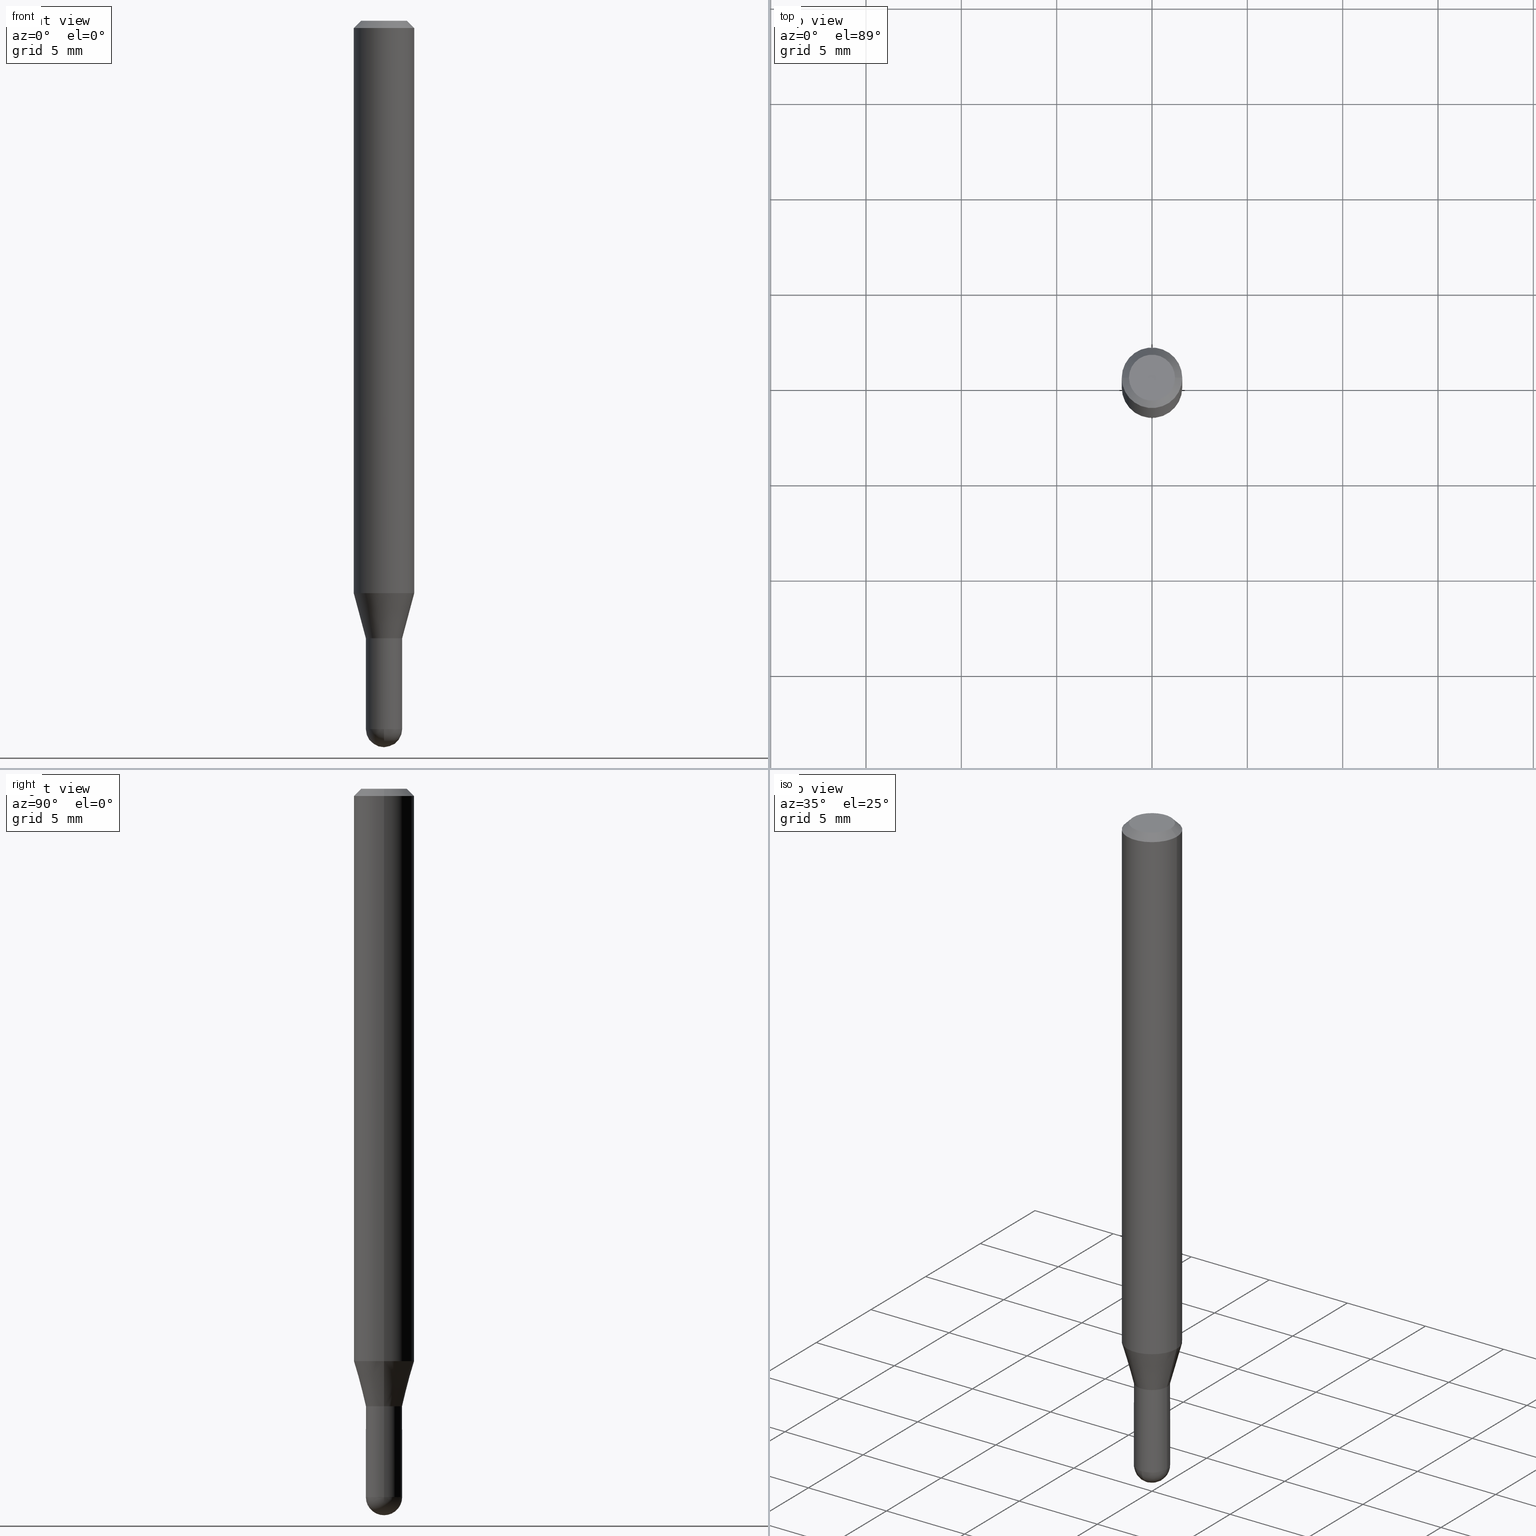
[diagram: canonical four-view strip — front | top / right | iso, engineering-drawing reading convention]
A machine part, canonical four-view strip (front | top / right | iso — engineering-drawing reading convention). The complete STEP part file that produces these views, byte-faithful:
ISO-10303-21;
HEADER;
FILE_DESCRIPTION (( 'STEP AP203' ),
    '1' );
FILE_NAME ('04011.STEP',
    '2024-03-08T18:35:17',
    ( '' ),
    ( '' ),
    'SwSTEP 2.0',
    'SolidWorks 2023',
    '' );
FILE_SCHEMA (( 'CONFIG_CONTROL_DESIGN' ));
ENDSEC;

DATA;
#1 = PLANE ( 'NONE',  #343 ) ;
#2 = DIRECTION ( 'NONE',  ( 1.000000000000000000, -6.982962677686257244E-15, 0.000000000000000000 ) ) ;
#3 = AXIS2_PLACEMENT_3D ( 'NONE', #77, #303, #199 ) ;
#4 = DIRECTION ( 'NONE',  ( 6.982962677686265922E-15, 1.000000000000000000, 0.000000000000000000 ) ) ;
#5 = DIRECTION ( 'NONE',  ( -2.445468806185136597E-29, 3.491481338843145583E-15, 1.000000000000000000 ) ) ;
#6 = MANIFOLD_SOLID_BREP ( 'Body-Move/Copy2[1]', #356 ) ;
#7 = DIRECTION ( 'NONE',  ( 1.000000000000000000, -6.982962677686254089E-15, 0.000000000000000000 ) ) ;
#8 = ADVANCED_FACE ( 'NONE', ( #96 ), #98, .F. ) ;
#9 = LINE ( 'NONE', #508, #94 ) ;
#10 = DIRECTION ( 'NONE',  ( 6.982962677686265922E-15, 1.000000000000000000, 0.000000000000000000 ) ) ;
#11 = DIRECTION ( 'NONE',  ( 1.000000000000000000, -6.982962677686280121E-15, 0.000000000000000000 ) ) ;
#12 = ORIENTED_EDGE ( 'NONE', *, *, #429, .T. ) ;
#13 = DIRECTION ( 'NONE',  ( 6.982962677686265922E-15, 1.000000000000000000, 0.000000000000000000 ) ) ;
#14 = ADVANCED_BREP_SHAPE_REPRESENTATION ( '04011', ( #6, #175, #145 ), #487 ) ;
#15 = ORIENTED_EDGE ( 'NONE', *, *, #266, .F. ) ;
#16 = DIRECTION ( 'NONE',  ( 1.000000000000000000, -6.982962677686280121E-15, 0.000000000000000000 ) ) ;
#17 = DIRECTION ( 'NONE',  ( -0.2588190451025291217, 5.211531920934597585E-15, 0.9659258262890659807 ) ) ;
#18 = AXIS2_PLACEMENT_3D ( 'NONE', #480, #447, #439 ) ;
#19 = COORDINATED_UNIVERSAL_TIME_OFFSET ( 5, 0, .BEHIND. ) ;
#20 = ORIENTED_EDGE ( 'NONE', *, *, #202, .F. ) ;
#21 = DIRECTION ( 'NONE',  ( 0.000000000000000000, 0.000000000000000000, 1.000000000000000000 ) ) ;
#22 = EDGE_CURVE ( 'NONE', #255, #280, #276, .T. ) ;
#23 = ORIENTED_EDGE ( 'NONE', *, *, #113, .F. ) ;
#24 = DIRECTION ( 'NONE',  ( 1.000000000000000000, -6.982962677686265922E-15, 4.876176775795935232E-29 ) ) ;
#25 = EDGE_LOOP ( 'NONE', ( #64, #459, #374, #481 ) ) ;
#26 = PERSON_AND_ORGANIZATION ( #338, #134 ) ;
#27 = AXIS2_PLACEMENT_3D ( 'NONE', #57, #211, #24 ) ;
#28 = LOCAL_TIME ( 13, 35, 17.00000000000000000, #367 ) ;
#29 = ORIENTED_EDGE ( 'NONE', *, *, #273, .F. ) ;
#30 = ADVANCED_FACE ( 'NONE', ( #337 ), #335, .T. ) ;
#31 = VERTEX_POINT ( 'NONE', #153 ) ;
#32 = LINE ( 'NONE', #104, #50 ) ;
#33 = ORIENTED_EDGE ( 'NONE', *, *, #127, .F. ) ;
#34 = AXIS2_PLACEMENT_3D ( 'NONE', #155, #190, #510 ) ;
#35 = VECTOR ( 'NONE', #129, 39.37007874015748143 ) ;
#36 = DIRECTION ( 'NONE',  ( -2.445468806185136597E-29, 3.491481338843145583E-15, 1.000000000000000000 ) ) ;
#37 = DIRECTION ( 'NONE',  ( 1.000000000000000000, -6.982962677686270655E-15, 0.000000000000000000 ) ) ;
#38 = LINE ( 'NONE', #73, #369 ) ;
#39 = CARTESIAN_POINT ( 'NONE',  ( 3.117972727886050170E-29, -4.451638707025012383E-15, -1.275000000000000577 ) ) ;
#40 = CIRCLE ( 'NONE', #102, 0.06250000000000000000 ) ;
#41 = ADVANCED_FACE ( 'NONE', ( #223 ), #378, .F. ) ;
#42 = DIRECTION ( 'NONE',  ( 1.000000000000000000, -6.982962677686266711E-15, 4.876176775795935793E-29 ) ) ;
#43 = FACE_OUTER_BOUND ( 'NONE', #456, .T. ) ;
#44 = CARTESIAN_POINT ( 'NONE',  ( 0.000000000000000000, 0.000000000000000000, 0.000000000000000000 ) ) ;
#45 = ORIENTED_EDGE ( 'NONE', *, *, #502, .T. ) ;
#46 = CARTESIAN_POINT ( 'NONE',  ( 3.576498129045762161E-29, -5.106291458058100676E-15, -1.462500000000000133 ) ) ;
#47 = EDGE_CURVE ( 'NONE', #329, #142, #188, .T. ) ;
#48 = FACE_OUTER_BOUND ( 'NONE', #184, .T. ) ;
#49 = ORIENTED_EDGE ( 'NONE', *, *, #309, .F. ) ;
#50 = VECTOR ( 'NONE', #166, 39.37007874015748143 ) ;
#51 = ORIENTED_EDGE ( 'NONE', *, *, #432, .T. ) ;
#52 = EDGE_CURVE ( 'NONE', #128, #164, #78, .T. ) ;
#53 = ORIENTED_EDGE ( 'NONE', *, *, #22, .T. ) ;
#54 = PERSON_AND_ORGANIZATION ( #338, #134 ) ;
#55 = LINE ( 'NONE', #403, #450 ) ;
#56 = CIRCLE ( 'NONE', #3, 0.03750000000000019984 ) ;
#57 = CARTESIAN_POINT ( 'NONE',  ( 0.000000000000000000, 0.000000000000000000, 0.000000000000000000 ) ) ;
#58 = EDGE_CURVE ( 'NONE', #270, #329, #382, .T. ) ;
#59 = ORIENTED_EDGE ( 'NONE', *, *, #468, .T. ) ;
#60 = CARTESIAN_POINT ( 'NONE',  ( 0.000000000000000000, 0.000000000000000000, 0.000000000000000000 ) ) ;
#61 = APPLICATION_CONTEXT ( 'configuration controlled 3d designs of mechanical parts and assemblies' ) ;
#62 = ORIENTED_EDGE ( 'NONE', *, *, #245, .T. ) ;
#63 = DATE_AND_TIME ( #440, #71 ) ;
#64 = ORIENTED_EDGE ( 'NONE', *, *, #293, .T. ) ;
#65 = DESIGN_CONTEXT ( 'detailed design', #503, 'design' ) ;
#66 = ORIENTED_EDGE ( 'NONE', *, *, #245, .F. ) ;
#67 = ORIENTED_EDGE ( 'NONE', *, *, #239, .T. ) ;
#68 = DIRECTION ( 'NONE',  ( 2.445468806185136597E-29, -3.491481338843145583E-15, -1.000000000000000000 ) ) ;
#69 = EDGE_CURVE ( 'NONE', #295, #329, #38, .T. ) ;
#70 = AXIS2_PLACEMENT_3D ( 'NONE', #463, #146, #262 ) ;
#71 = LOCAL_TIME ( 13, 35, 17.00000000000000000, #19 ) ;
#72 = CARTESIAN_POINT ( 'NONE',  ( 3.668203209277721290E-31, -5.237222008264741202E-17, -0.01500000000000006710 ) ) ;
#73 = CARTESIAN_POINT ( 'NONE',  ( 0.03699999999999999817, -4.710008326099403589E-15, -1.275000000000000577 ) ) ;
#74 = DIRECTION ( 'NONE',  ( -2.445468806185136597E-29, 3.491481338843145583E-15, 1.000000000000000000 ) ) ;
#75 = CARTESIAN_POINT ( 'NONE',  ( 0.000000000000000000, 0.000000000000000000, 0.000000000000000000 ) ) ;
#76 = CC_DESIGN_PERSON_AND_ORGANIZATION_ASSIGNMENT ( #84, #234, ( #339 ) ) ;
#77 = CARTESIAN_POINT ( 'NONE',  ( 3.117972727886049049E-29, -4.451638707025011594E-15, -1.275000000000000133 ) ) ;
#78 = CIRCLE ( 'NONE', #34, 0.04749999999999999362 ) ;
#79 = CARTESIAN_POINT ( 'NONE',  ( 2.889807382060866226E-29, -4.125879063268994698E-15, -1.181698729810782167 ) ) ;
#80 = CIRCLE ( 'NONE', #189, 0.03749999999999993616 ) ;
#81 = FACE_OUTER_BOUND ( 'NONE', #321, .T. ) ;
#82 = ORIENTED_EDGE ( 'NONE', *, *, #468, .F. ) ;
#83 = CARTESIAN_POINT ( 'NONE',  ( 3.117972727886049049E-29, -4.451638707025011594E-15, -1.275000000000000133 ) ) ;
#84 = PERSON_AND_ORGANIZATION ( #338, #134 ) ;
#85 = CIRCLE ( 'NONE', #428, 0.03749999999999999861 ) ;
#86 = ORIENTED_EDGE ( 'NONE', *, *, #316, .F. ) ;
#87 = LOCAL_TIME ( 13, 35, 17.00000000000000000, #91 ) ;
#88 = CALENDAR_DATE ( 2024, 8, 3 ) ;
#89 = EDGE_LOOP ( 'NONE', ( #177, #169, #394, #101 ) ) ;
#90 = ADVANCED_FACE ( 'NONE', ( #194 ), #412, .T. ) ;
#91 = COORDINATED_UNIVERSAL_TIME_OFFSET ( 5, 0, .BEHIND. ) ;
#92 = DIRECTION ( 'NONE',  ( 1.000000000000000000, -6.982962677686268288E-15, 4.876176775795935793E-29 ) ) ;
#93 = ORIENTED_EDGE ( 'NONE', *, *, #162, .T. ) ;
#94 = VECTOR ( 'NONE', #197, 39.37007874015748143 ) ;
#95 = AXIS2_PLACEMENT_3D ( 'NONE', #112, #346, #7 ) ;
#96 = FACE_OUTER_BOUND ( 'NONE', #315, .T. ) ;
#97 = PERSON_AND_ORGANIZATION ( #338, #134 ) ;
#98 = PLANE ( 'NONE',  #419 ) ;
#99 = COORDINATED_UNIVERSAL_TIME_OFFSET ( 5, 0, .BEHIND. ) ;
#100 = APPROVAL ( #136, 'UNSPECIFIED' ) ;
#101 = ORIENTED_EDGE ( 'NONE', *, *, #47, .T. ) ;
#102 = AXIS2_PLACEMENT_3D ( 'NONE', #313, #119, #435 ) ;
#103 = EDGE_LOOP ( 'NONE', ( #143, #51, #430, #414 ) ) ;
#104 = CARTESIAN_POINT ( 'NONE',  ( 0.03750000000000019984, -4.713499807438247385E-15, -1.275000000000000133 ) ) ;
#105 = DIRECTION ( 'NONE',  ( -2.445468806185136597E-29, 3.491481338843145583E-15, 1.000000000000000000 ) ) ;
#106 = EDGE_CURVE ( 'NONE', #238, #286, #229, .T. ) ;
#107 = FACE_OUTER_BOUND ( 'NONE', #405, .T. ) ;
#108 = CARTESIAN_POINT ( 'NONE',  ( -0.04749999999999999362, 3.578768372314208041E-16, -6.550023405239862292E-17 ) ) ;
#109 = CARTESIAN_POINT ( 'NONE',  ( 0.06250000000000000000, -4.888073874380391431E-16, -0.01500000000000006710 ) ) ;
#110 = AXIS2_PLACEMENT_3D ( 'NONE', #172, #318, #489 ) ;
#111 = CARTESIAN_POINT ( 'NONE',  ( 3.117972727886049049E-29, -4.451638707025011594E-15, -1.275000000000000133 ) ) ;
#112 = CARTESIAN_POINT ( 'NONE',  ( 3.117972727886050170E-29, -4.451638707025012383E-15, -1.275000000000000577 ) ) ;
#113 = EDGE_CURVE ( 'NONE', #255, #326, #149, .T. ) ;
#114 = DIRECTION ( 'NONE',  ( -2.445468806185136597E-29, 3.491481338843145583E-15, 1.000000000000000000 ) ) ;
#115 = CARTESIAN_POINT ( 'NONE',  ( 3.533226714813284763E-29, -5.168258586094955847E-15, -1.462500000000000133 ) ) ;
#116 = CARTESIAN_POINT ( 'NONE',  ( 3.668203209277721290E-31, -5.237222008264741202E-17, -0.01500000000000006710 ) ) ;
#117 = DIRECTION ( 'NONE',  ( -1.000000000000000000, 6.982962677686265922E-15, -4.883557194083112901E-29 ) ) ;
#118 = CIRCLE ( 'NONE', #358, 0.06250000000000000000 ) ;
#119 = DIRECTION ( 'NONE',  ( -2.445468806185136597E-29, 3.491481338843145583E-15, 1.000000000000000000 ) ) ;
#120 = DIRECTION ( 'NONE',  ( -2.445468806185136597E-29, 3.491481338843145583E-15, 1.000000000000000000 ) ) ;
#121 = CC_DESIGN_PERSON_AND_ORGANIZATION_ASSIGNMENT ( #283, #496, ( #186 ) ) ;
#122 = PERSON_AND_ORGANIZATION ( #338, #134 ) ;
#123 = CIRCLE ( 'NONE', #241, 0.06250000000000000000 ) ;
#124 = EDGE_LOOP ( 'NONE', ( #132, #62, #331, #314 ) ) ;
#125 = CIRCLE ( 'NONE', #18, 0.04749999999999999362 ) ;
#126 =( NAMED_UNIT ( * ) SI_UNIT ( $, .STERADIAN. ) SOLID_ANGLE_UNIT ( ) );
#127 = EDGE_CURVE ( 'NONE', #326, #501, #118, .T. ) ;
#128 = VERTEX_POINT ( 'NONE', #257 ) ;
#129 = DIRECTION ( 'NONE',  ( 0.7071067811865475727, -7.319954787623256045E-15, -0.7071067811865474617 ) ) ;
#130 = FACE_OUTER_BOUND ( 'NONE', #137, .T. ) ;
#131 = DATE_AND_TIME ( #240, #204 ) ;
#132 = ORIENTED_EDGE ( 'NONE', *, *, #266, .T. ) ;
#133 = ORIENTED_EDGE ( 'NONE', *, *, #113, .T. ) ;
#134 = ORGANIZATION ( 'UNSPECIFIED', 'UNSPECIFIED', '' ) ;
#135 = ADVANCED_FACE ( 'NONE', ( #299 ), #462, .F. ) ;
#136 = APPROVAL_STATUS ( 'not_yet_approved' ) ;
#137 = EDGE_LOOP ( 'NONE', ( #212, #82, #504, #93 ) ) ;
#138 = FACE_OUTER_BOUND ( 'NONE', #443, .T. ) ;
#139 = UNCERTAINTY_MEASURE_WITH_UNIT (LENGTH_MEASURE( 1.000000000000000082E-05 ), #509, 'distance_accuracy_value', 'NONE');
#140 = PERSON_AND_ORGANIZATION_ROLE ( 'creator' ) ;
#141 = FACE_OUTER_BOUND ( 'NONE', #242, .T. ) ;
#142 = VERTEX_POINT ( 'NONE', #298 ) ;
#143 = ORIENTED_EDGE ( 'NONE', *, *, #52, .F. ) ;
#144 = CIRCLE ( 'NONE', #427, 0.03749999999999993616 ) ;
#145 = AXIS2_PLACEMENT_3D ( 'NONE', #60, #21, #213 ) ;
#146 = DIRECTION ( 'NONE',  ( 2.438088387897960049E-29, -3.491481338843145188E-15, -1.000000000000000000 ) ) ;
#147 = APPROVAL ( #250, 'UNSPECIFIED' ) ;
#148 = DIRECTION ( 'NONE',  ( -2.438088387897960049E-29, 3.491481338843145188E-15, 1.000000000000000000 ) ) ;
#149 = LINE ( 'NONE', #307, #285 ) ;
#150 = CARTESIAN_POINT ( 'NONE',  ( 3.626535231837438641E-29, -5.296892923553173326E-15, -1.500000000000000222 ) ) ;
#151 = CC_DESIGN_SECURITY_CLASSIFICATION ( #181, ( #209 ) ) ;
#152 = DIRECTION ( 'NONE',  ( 1.000000000000000000, -6.982962677686265922E-15, 4.876176775795935793E-29 ) ) ;
#153 = CARTESIAN_POINT ( 'NONE',  ( 0.03749999999999993616, -5.040826182954790742E-15, -1.462500000000000133 ) ) ;
#154 = DIRECTION ( 'NONE',  ( -2.445468806185136597E-29, 3.491481338843145583E-15, 1.000000000000000000 ) ) ;
#155 = CARTESIAN_POINT ( 'NONE',  ( 1.601787791729603882E-45, -2.286928448837997150E-31, -6.550023405239620703E-17 ) ) ;
#156 = DIRECTION ( 'NONE',  ( 1.000000000000000000, -6.982962677686280121E-15, 0.000000000000000000 ) ) ;
#157 = ADVANCED_FACE ( 'NONE', ( #469 ), #325, .T. ) ;
#158 = DIRECTION ( 'NONE',  ( -2.445468806185136877E-29, 3.491481338843145188E-15, 1.000000000000000000 ) ) ;
#159 = CARTESIAN_POINT ( 'NONE',  ( 0.03750000000000019984, -4.713499807438247385E-15, -1.275000000000000133 ) ) ;
#160 = AXIS2_PLACEMENT_3D ( 'NONE', #224, #441, #399 ) ;
#161 = CONICAL_SURFACE ( 'NONE', #95, 0.03699999999999999817, 0.7853981633974697063 ) ;
#162 = EDGE_CURVE ( 'NONE', #501, #326, #123, .T. ) ;
#163 = CARTESIAN_POINT ( 'NONE',  ( 0.000000000000000000, 0.000000000000000000, 0.000000000000000000 ) ) ;
#164 = VERTEX_POINT ( 'NONE', #108 ) ;
#165 = EDGE_CURVE ( 'NONE', #499, #31, #391, .T. ) ;
#166 = DIRECTION ( 'NONE',  ( 0.2588190451025291217, 1.565188264969560831E-15, 0.9659258262890659807 ) ) ;
#167 = ADVANCED_FACE ( 'NONE', ( #418 ), #196, .T. ) ;
#168 = CYLINDRICAL_SURFACE ( 'NONE', #379, 0.03749999999999996392 ) ;
#169 = ORIENTED_EDGE ( 'NONE', *, *, #293, .F. ) ;
#170 = CIRCLE ( 'NONE', #478, 0.03750000000000004025 ) ;
#171 = LINE ( 'NONE', #398, #35 ) ;
#172 = CARTESIAN_POINT ( 'NONE',  ( 3.116749993482957368E-29, -4.449892966355590090E-15, -1.274500000000000188 ) ) ;
#173 = COORDINATED_UNIVERSAL_TIME_OFFSET ( 5, 0, .BEHIND. ) ;
#174 = LINE ( 'NONE', #368, #208 ) ;
#175 = MANIFOLD_SOLID_BREP ( 'Body-Move/Copy2[2]', #485 ) ;
#176 = CARTESIAN_POINT ( 'NONE',  ( -0.03699999999999999817, -4.186088667619663091E-15, -1.275000000000000577 ) ) ;
#177 = ORIENTED_EDGE ( 'NONE', *, *, #404, .F. ) ;
#178 = ORIENTED_EDGE ( 'NONE', *, *, #165, .F. ) ;
#179 = VERTEX_POINT ( 'NONE', #150 ) ;
#180 = CIRCLE ( 'NONE', #302, 0.03699999999999999817 ) ;
#181 = SECURITY_CLASSIFICATION ( '', '', #455 ) ;
#182 = PERSON_AND_ORGANIZATION ( #338, #134 ) ;
#183 = EDGE_LOOP ( 'NONE', ( #59, #294 ) ) ;
#184 = EDGE_LOOP ( 'NONE', ( #15, #221 ) ) ;
#185 = APPLICATION_PROTOCOL_DEFINITION ( 'international standard', 'config_control_design', 1994, #61 ) ;
#186 = PRODUCT_DEFINITION ( 'UNKNOWN', '', #209, #65 ) ;
#187 = ORIENTED_EDGE ( 'NONE', *, *, #387, .T. ) ;
#188 = CIRCLE ( 'NONE', #476, 0.03750000000000019290 ) ;
#189 = AXIS2_PLACEMENT_3D ( 'NONE', #444, #353, #16 ) ;
#190 = DIRECTION ( 'NONE',  ( -2.445468806185136597E-29, 3.491481338843145583E-15, 1.000000000000000000 ) ) ;
#191 = DIRECTION ( 'NONE',  ( -2.445468806185136597E-29, 3.491481338843145583E-15, 1.000000000000000000 ) ) ;
#192 = EDGE_CURVE ( 'NONE', #401, #434, #144, .T. ) ;
#193 = CYLINDRICAL_SURFACE ( 'NONE', #317, 0.06250000000000000000 ) ;
#194 = FACE_OUTER_BOUND ( 'NONE', #25, .T. ) ;
#195 = CC_DESIGN_DATE_AND_TIME_ASSIGNMENT ( #63, #247, ( #186 ) ) ;
#196 = CONICAL_SURFACE ( 'NONE', #348, 0.06250000000000000000, 0.7853981633974483900 ) ;
#197 = DIRECTION ( 'NONE',  ( -2.445468806185136877E-29, 3.491481338843145188E-15, 1.000000000000000000 ) ) ;
#198 = DIRECTION ( 'NONE',  ( -2.445468806185136597E-29, 3.491481338843145583E-15, 1.000000000000000000 ) ) ;
#199 = DIRECTION ( 'NONE',  ( 1.000000000000000000, -6.982962677686257244E-15, 0.000000000000000000 ) ) ;
#200 = LINE ( 'NONE', #347, #385 ) ;
#201 = DIRECTION ( 'NONE',  ( 1.000000000000000000, -6.982962677686254089E-15, 0.000000000000000000 ) ) ;
#202 = EDGE_CURVE ( 'NONE', #280, #501, #9, .T. ) ;
#203 = ORIENTED_EDGE ( 'NONE', *, *, #336, .F. ) ;
#204 = LOCAL_TIME ( 13, 35, 17.00000000000000000, #99 ) ;
#205 = FACE_OUTER_BOUND ( 'NONE', #216, .T. ) ;
#206 = ORIENTED_EDGE ( 'NONE', *, *, #409, .F. ) ;
#207 = PERSON_AND_ORGANIZATION ( #338, #134 ) ;
#208 = VECTOR ( 'NONE', #446, 39.37007874015748143 ) ;
#209 = PRODUCT_DEFINITION_FORMATION_WITH_SPECIFIED_SOURCE ( 'ANY', '', #339, .NOT_KNOWN. ) ;
#210 = CARTESIAN_POINT ( 'NONE',  ( 0.03749999999999999861, -4.713499807438246596E-15, -1.275000000000000133 ) ) ;
#211 = DIRECTION ( 'NONE',  ( -2.445468806185136597E-29, 3.491481338843145583E-15, 1.000000000000000000 ) ) ;
#212 = ORIENTED_EDGE ( 'NONE', *, *, #432, .F. ) ;
#213 = DIRECTION ( 'NONE',  ( 1.000000000000000000, 0.000000000000000000, 0.000000000000000000 ) ) ;
#214 = ADVANCED_FACE ( 'NONE', ( #107 ), #505, .T. ) ;
#215 = ORIENTED_EDGE ( 'NONE', *, *, #429, .F. ) ;
#216 = EDGE_LOOP ( 'NONE', ( #413, #12, #236, #274, #493 ) ) ;
#217 = AXIS2_PLACEMENT_3D ( 'NONE', #301, #191, #258 ) ;
#218 = AXIS2_PLACEMENT_3D ( 'NONE', #115, #431, #10 ) ;
#219 = ORIENTED_EDGE ( 'NONE', *, *, #192, .F. ) ;
#220 = APPROVAL ( #275, 'UNSPECIFIED' ) ;
#221 = ORIENTED_EDGE ( 'NONE', *, *, #373, .F. ) ;
#222 = LENGTH_MEASURE_WITH_UNIT ( LENGTH_MEASURE( 0.02539999999999999897 ), #417 );
#223 = FACE_OUTER_BOUND ( 'NONE', #89, .T. ) ;
#224 = CARTESIAN_POINT ( 'NONE',  ( 3.117972727886049049E-29, -4.451638707025011594E-15, -1.275000000000000133 ) ) ;
#225 = DIRECTION ( 'NONE',  ( -1.000000000000000000, 6.982962677686266711E-15, 0.000000000000000000 ) ) ;
#226 = CARTESIAN_POINT ( 'NONE',  ( 3.117972727886050170E-29, -4.451638707025012383E-15, -1.275000000000000577 ) ) ;
#227 = DIRECTION ( 'NONE',  ( 1.000000000000000000, -6.982962677686254089E-15, 0.000000000000000000 ) ) ;
#228 = DIRECTION ( 'NONE',  ( -2.445468806185136877E-29, 3.491481338843145188E-15, 1.000000000000000000 ) ) ;
#229 = CIRCLE ( 'NONE', #436, 0.03749999999999999861 ) ;
#230 = CIRCLE ( 'NONE', #277, 0.03750000000000019984 ) ;
#231 = DIRECTION ( 'NONE',  ( -2.445468806185136597E-29, 3.491481338843145583E-15, 1.000000000000000000 ) ) ;
#232 = DIRECTION ( 'NONE',  ( -2.445468806185136877E-29, 3.491481338843145188E-15, 1.000000000000000000 ) ) ;
#233 = CC_DESIGN_DATE_AND_TIME_ASSIGNMENT ( #453, #490, ( #181 ) ) ;
#234 = PERSON_AND_ORGANIZATION_ROLE ( 'design_owner' ) ;
#235 = CC_DESIGN_APPROVAL ( #220, ( #186 ) ) ;
#236 = ORIENTED_EDGE ( 'NONE', *, *, #165, .T. ) ;
#237 = FACE_OUTER_BOUND ( 'NONE', #272, .T. ) ;
#238 = VERTEX_POINT ( 'NONE', #408 ) ;
#239 = EDGE_CURVE ( 'NONE', #434, #238, #174, .T. ) ;
#240 = CALENDAR_DATE ( 2024, 8, 3 ) ;
#241 = AXIS2_PLACEMENT_3D ( 'NONE', #116, #114, #416 ) ;
#242 = EDGE_LOOP ( 'NONE', ( #289, #410, #246, #371 ) ) ;
#243 = VECTOR ( 'NONE', #17, 39.37007874015748143 ) ;
#244 = APPROVAL_ROLE ( '' ) ;
#245 = EDGE_CURVE ( 'NONE', #454, #142, #55, .T. ) ;
#246 = ORIENTED_EDGE ( 'NONE', *, *, #316, .T. ) ;
#247 = DATE_TIME_ROLE ( 'creation_date' ) ;
#248 = CARTESIAN_POINT ( 'NONE',  ( 2.618611004132661617E-16, 0.03749999999999554384, -1.275000000000000133 ) ) ;
#249 = CARTESIAN_POINT ( 'NONE',  ( 3.533226714813284763E-29, -5.168258586094955847E-15, -1.462500000000000133 ) ) ;
#250 = APPROVAL_STATUS ( 'not_yet_approved' ) ;
#251 = EDGE_LOOP ( 'NONE', ( #362, #388, #448, #178 ) ) ;
#252 = ADVANCED_FACE ( 'NONE', ( #141 ), #292, .F. ) ;
#253 = AXIS2_PLACEMENT_3D ( 'NONE', #79, #198, #37 ) ;
#254 = APPROVAL_PERSON_ORGANIZATION ( #122, #220, #355 ) ;
#255 = VERTEX_POINT ( 'NONE', #457 ) ;
#256 = DIRECTION ( 'NONE',  ( -7.105427357601000281E-15, -1.000000000000000000, 0.000000000000000000 ) ) ;
#257 = CARTESIAN_POINT ( 'NONE',  ( 0.04749999999999999362, -4.035134999187580595E-16, -6.550023405239363091E-17 ) ) ;
#258 = DIRECTION ( 'NONE',  ( 1.000000000000000000, -6.982962677686280121E-15, 0.000000000000000000 ) ) ;
#259 = AXIS2_PLACEMENT_3D ( 'NONE', #267, #74, #156 ) ;
#260 = DIRECTION ( 'NONE',  ( 1.000000000000000000, -6.982962677686265922E-15, 4.876176775795935232E-29 ) ) ;
#261 = PRODUCT_DEFINITION_SHAPE ( 'NONE', 'NONE',  #186 ) ;
#262 = DIRECTION ( 'NONE',  ( -1.000000000000000000, 6.982962677686265922E-15, -4.876176775795935793E-29 ) ) ;
#263 = DIRECTION ( 'NONE',  ( -1.000000000000000000, 6.982962677686266711E-15, 0.000000000000000000 ) ) ;
#264 = CARTESIAN_POINT ( 'NONE',  ( -0.06250000000000000000, -1.645036431825758273E-15, -0.01500000000000006710 ) ) ;
#265 = DIRECTION ( 'NONE',  ( 1.000000000000000000, -6.982962677686266711E-15, 0.000000000000000000 ) ) ;
#266 = EDGE_CURVE ( 'NONE', #295, #454, #180, .T. ) ;
#267 = CARTESIAN_POINT ( 'NONE',  ( 3.576498129045762161E-29, -5.106291458058100676E-15, -1.462500000000000133 ) ) ;
#268 = AXIS2_PLACEMENT_3D ( 'NONE', #345, #5, #260 ) ;
#269 = CIRCLE ( 'NONE', #466, 0.03699999999999999817 ) ;
#270 = VERTEX_POINT ( 'NONE', #159 ) ;
#271 = CARTESIAN_POINT ( 'NONE',  ( 2.618611004132704018E-16, 0.03749999999999485689, -1.462500000000000133 ) ) ;
#272 = EDGE_LOOP ( 'NONE', ( #278, #67, #29, #323, #359 ) ) ;
#273 = EDGE_CURVE ( 'NONE', #286, #238, #85, .T. ) ;
#274 = ORIENTED_EDGE ( 'NONE', *, *, #332, .T. ) ;
#275 = APPROVAL_STATUS ( 'not_yet_approved' ) ;
#276 = CIRCLE ( 'NONE', #253, 0.06250000000000000000 ) ;
#277 = AXIS2_PLACEMENT_3D ( 'NONE', #495, #366, #449 ) ;
#278 = ORIENTED_EDGE ( 'NONE', *, *, #192, .T. ) ;
#279 = CARTESIAN_POINT ( 'NONE',  ( 0.000000000000000000, 0.000000000000000000, 0.000000000000000000 ) ) ;
#280 = VERTEX_POINT ( 'NONE', #324 ) ;
#281 = DIRECTION ( 'NONE',  ( 1.000000000000000000, -6.982962677686268288E-15, 4.876176775795935793E-29 ) ) ;
#282 = CARTESIAN_POINT ( 'NONE',  ( 3.668203209277721290E-31, -5.237222008264741202E-17, -0.01500000000000006710 ) ) ;
#283 = PERSON_AND_ORGANIZATION ( #338, #134 ) ;
#284 = ORIENTED_EDGE ( 'NONE', *, *, #373, .T. ) ;
#285 = VECTOR ( 'NONE', #228, 39.37007874015748143 ) ;
#286 = VERTEX_POINT ( 'NONE', #210 ) ;
#287 = VECTOR ( 'NONE', #425, 39.37007874015748143 ) ;
#288 = DIRECTION ( 'NONE',  ( 2.445468806185136597E-29, -3.491481338843145583E-15, -1.000000000000000000 ) ) ;
#289 = ORIENTED_EDGE ( 'NONE', *, *, #387, .F. ) ;
#290 = SPHERICAL_SURFACE ( 'NONE', #327, 0.03750000000000004025 ) ;
#291 = DIMENSIONAL_EXPONENTS ( 1.000000000000000000, 0.000000000000000000, 0.000000000000000000, 0.000000000000000000, 0.000000000000000000, 0.000000000000000000, 0.000000000000000000 ) ;
#292 = CYLINDRICAL_SURFACE ( 'NONE', #27, 0.03750000000000019984 ) ;
#293 = EDGE_CURVE ( 'NONE', #270, #491, #230, .T. ) ;
#294 = ORIENTED_EDGE ( 'NONE', *, *, #52, .T. ) ;
#295 = VERTEX_POINT ( 'NONE', #500 ) ;
#296 = VECTOR ( 'NONE', #310, 39.37007874015748143 ) ;
#297 = CIRCLE ( 'NONE', #218, 0.03750000000000004025 ) ;
#298 = CARTESIAN_POINT ( 'NONE',  ( -0.03750000000000019290, -4.183439440445551890E-15, -1.274500000000000188 ) ) ;
#299 = FACE_OUTER_BOUND ( 'NONE', #183, .T. ) ;
#300 = ADVANCED_FACE ( 'NONE', ( #138 ), #290, .T. ) ;
#301 = CARTESIAN_POINT ( 'NONE',  ( 3.576498129045762161E-29, -5.106291458058100676E-15, -1.462500000000000133 ) ) ;
#302 = AXIS2_PLACEMENT_3D ( 'NONE', #461, #312, #201 ) ;
#303 = DIRECTION ( 'NONE',  ( -2.445468806185136597E-29, 3.491481338843145583E-15, 1.000000000000000000 ) ) ;
#304 = AXIS2_PLACEMENT_3D ( 'NONE', #39, #105, #227 ) ;
#305 = APPROVAL_PERSON_ORGANIZATION ( #97, #147, #445 ) ;
#306 = CARTESIAN_POINT ( 'NONE',  ( 3.533226714813284763E-29, -5.168258586094955847E-15, -1.462500000000000133 ) ) ;
#307 = CARTESIAN_POINT ( 'NONE',  ( 0.06250000000000000000, -4.364351673553916694E-16, 3.047610484872459871E-30 ) ) ;
#308 = DIRECTION ( 'NONE',  ( 1.000000000000000000, -6.982962677686266711E-15, 4.876176775795935793E-29 ) ) ;
#309 = EDGE_CURVE ( 'NONE', #491, #280, #354, .T. ) ;
#310 = DIRECTION ( 'NONE',  ( -2.445468806185136877E-29, 3.491481338843145188E-15, 1.000000000000000000 ) ) ;
#311 = CARTESIAN_POINT ( 'NONE',  ( 0.03750000000000019290, -4.711754066768825881E-15, -1.274500000000000188 ) ) ;
#312 = DIRECTION ( 'NONE',  ( -2.445468806185136597E-29, 3.491481338843145583E-15, 1.000000000000000000 ) ) ;
#313 = CARTESIAN_POINT ( 'NONE',  ( 2.889807382060866226E-29, -4.125879063268994698E-15, -1.181698729810782167 ) ) ;
#314 = ORIENTED_EDGE ( 'NONE', *, *, #69, .F. ) ;
#315 = EDGE_LOOP ( 'NONE', ( #351, #452 ) ) ;
#316 = EDGE_CURVE ( 'NONE', #142, #329, #458, .T. ) ;
#317 = AXIS2_PLACEMENT_3D ( 'NONE', #163, #477, #308 ) ;
#318 = DIRECTION ( 'NONE',  ( -2.445468806185136597E-29, 3.491481338843145583E-15, 1.000000000000000000 ) ) ;
#319 = DATE_AND_TIME ( #88, #392 ) ;
#320 = ADVANCED_FACE ( 'NONE', ( #130 ), #437, .T. ) ;
#321 = EDGE_LOOP ( 'NONE', ( #53, #397, #33, #23 ) ) ;
#322 = APPROVAL_DATE_TIME ( #131, #100 ) ;
#323 = ORIENTED_EDGE ( 'NONE', *, *, #332, .F. ) ;
#324 = CARTESIAN_POINT ( 'NONE',  ( -0.06250000000000000000, -3.681789853418932082E-15, -1.181698729810782167 ) ) ;
#325 = CONICAL_SURFACE ( 'NONE', #304, 0.03699999999999999817, 0.7853981633974697063 ) ;
#326 = VERTEX_POINT ( 'NONE', #109 ) ;
#327 = AXIS2_PLACEMENT_3D ( 'NONE', #249, #352, #13 ) ;
#328 = PERSON_AND_ORGANIZATION_ROLE ( 'classification_officer' ) ;
#329 = VERTEX_POINT ( 'NONE', #311 ) ;
#330 = PERSON_AND_ORGANIZATION_ROLE ( 'design_supplier' ) ;
#331 = ORIENTED_EDGE ( 'NONE', *, *, #47, .F. ) ;
#332 = EDGE_CURVE ( 'NONE', #31, #286, #342, .T. ) ;
#333 = CARTESIAN_POINT ( 'NONE',  ( 3.116749993482957368E-29, -4.449892966355590090E-15, -1.274500000000000188 ) ) ;
#334 = AXIS2_PLACEMENT_3D ( 'NONE', #474, #117, #4 ) ;
#335 = CYLINDRICAL_SURFACE ( 'NONE', #497, 0.06250000000000000000 ) ;
#336 = EDGE_CURVE ( 'NONE', #179, #401, #297, .T. ) ;
#337 = FACE_OUTER_BOUND ( 'NONE', #484, .T. ) ;
#338 = PERSON ( 'UNSPECIFIED', 'UNSPECIFIED', 'UNSPECIFIED', ('UNSPECIFIED'), ('UNSPECIFIED'), ('UNSPECIFIED') ) ;
#339 = PRODUCT ( '04011', '04011', '', ( #393 ) ) ;
#340 = DIRECTION ( 'NONE',  ( -2.445468806185136597E-29, 3.491481338843145583E-15, 1.000000000000000000 ) ) ;
#341 = AXIS2_PLACEMENT_3D ( 'NONE', #111, #340, #2 ) ;
#342 = LINE ( 'NONE', #473, #498 ) ;
#343 = AXIS2_PLACEMENT_3D ( 'NONE', #464, #148, #152 ) ;
#344 = ADVANCED_FACE ( 'NONE', ( #421 ), #467, .T. ) ;
#345 = CARTESIAN_POINT ( 'NONE',  ( 0.000000000000000000, 0.000000000000000000, 0.000000000000000000 ) ) ;
#346 = DIRECTION ( 'NONE',  ( -2.445468806185136597E-29, 3.491481338843145583E-15, 1.000000000000000000 ) ) ;
#347 = CARTESIAN_POINT ( 'NONE',  ( -0.03750000000000019984, 2.664535259100389897E-16, -1.844600658845599617E-30 ) ) ;
#348 = AXIS2_PLACEMENT_3D ( 'NONE', #72, #68, #225 ) ;
#349 = ORIENTED_EDGE ( 'NONE', *, *, #162, .F. ) ;
#350 = DIRECTION ( 'NONE',  ( 1.000000000000000000, -6.982962677686268288E-15, 0.000000000000000000 ) ) ;
#351 = ORIENTED_EDGE ( 'NONE', *, *, #273, .T. ) ;
#352 = DIRECTION ( 'NONE',  ( -1.000000000000000000, 6.982962677686265922E-15, -4.883557194083112901E-29 ) ) ;
#353 = DIRECTION ( 'NONE',  ( -2.445468806185136597E-29, 3.491481338843145583E-15, 1.000000000000000000 ) ) ;
#354 = LINE ( 'NONE', #486, #243 ) ;
#355 = APPROVAL_ROLE ( '' ) ;
#356 = CLOSED_SHELL ( 'NONE', ( #415, #300, #8, #344, #483 ) ) ;
#357 = CC_DESIGN_PERSON_AND_ORGANIZATION_ASSIGNMENT ( #207, #328, ( #181 ) ) ;
#358 = AXIS2_PLACEMENT_3D ( 'NONE', #465, #384, #265 ) ;
#359 = ORIENTED_EDGE ( 'NONE', *, *, #395, .T. ) ;
#360 = DIRECTION ( 'NONE',  ( -2.445468806185136597E-29, 3.491481338843145583E-15, 1.000000000000000000 ) ) ;
#361 = APPROVAL_DATE_TIME ( #363, #147 ) ;
#362 = ORIENTED_EDGE ( 'NONE', *, *, #502, .F. ) ;
#363 = DATE_AND_TIME ( #411, #87 ) ;
#364 = ORIENTED_EDGE ( 'NONE', *, *, #69, .T. ) ;
#365 = ADVANCED_FACE ( 'NONE', ( #81 ), #193, .T. ) ;
#366 = DIRECTION ( 'NONE',  ( -2.445468806185136597E-29, 3.491481338843145583E-15, 1.000000000000000000 ) ) ;
#367 = COORDINATED_UNIVERSAL_TIME_OFFSET ( 5, 0, .BEHIND. ) ;
#368 = CARTESIAN_POINT ( 'NONE',  ( -0.03749999999999996392, 2.664535259100373133E-16, -1.844600658845588057E-30 ) ) ;
#369 = VECTOR ( 'NONE', #512, 39.37007874015748143 ) ;
#370 = CC_DESIGN_APPROVAL ( #147, ( #181 ) ) ;
#371 = ORIENTED_EDGE ( 'NONE', *, *, #58, .F. ) ;
#372 = CC_DESIGN_APPROVAL ( #100, ( #209 ) ) ;
#373 = EDGE_CURVE ( 'NONE', #454, #295, #269, .T. ) ;
#374 = ORIENTED_EDGE ( 'NONE', *, *, #22, .F. ) ;
#375 = ORIENTED_EDGE ( 'NONE', *, *, #438, .T. ) ;
#376 = PRODUCT_RELATED_PRODUCT_CATEGORY ( 'detail', '', ( #339 ) ) ;
#377 = DIRECTION ( 'NONE',  ( -1.000000000000000000, 7.105427357601001070E-15, -4.926315508542082329E-29 ) ) ;
#378 = CYLINDRICAL_SURFACE ( 'NONE', #268, 0.03750000000000019984 ) ;
#379 = AXIS2_PLACEMENT_3D ( 'NONE', #44, #442, #92 ) ;
#380 = CARTESIAN_POINT ( 'NONE',  ( 3.117972727886049049E-29, -4.451638707025011594E-15, -1.275000000000000133 ) ) ;
#381 = CARTESIAN_POINT ( 'NONE',  ( -0.06250000000000000000, 3.840629472727442451E-16, -0.01500000000000006710 ) ) ;
#382 = LINE ( 'NONE', #422, #296 ) ;
#383 = EDGE_CURVE ( 'NONE', #164, #501, #470, .T. ) ;
#384 = DIRECTION ( 'NONE',  ( -2.445468806185136597E-29, 3.491481338843145583E-15, 1.000000000000000000 ) ) ;
#385 = VECTOR ( 'NONE', #158, 39.37007874015748143 ) ;
#386 = DIRECTION ( 'NONE',  ( -2.445468806185136597E-29, 3.491481338843145583E-15, 1.000000000000000000 ) ) ;
#387 = EDGE_CURVE ( 'NONE', #491, #270, #56, .T. ) ;
#388 = ORIENTED_EDGE ( 'NONE', *, *, #336, .T. ) ;
#389 = ADVANCED_FACE ( 'NONE', ( #43 ), #161, .T. ) ;
#390 = ORIENTED_EDGE ( 'NONE', *, *, #409, .T. ) ;
#391 = CIRCLE ( 'NONE', #217, 0.03749999999999993616 ) ;
#392 = LOCAL_TIME ( 13, 35, 17.00000000000000000, #173 ) ;
#393 = MECHANICAL_CONTEXT ( 'NONE', #61, 'mechanical' ) ;
#394 = ORIENTED_EDGE ( 'NONE', *, *, #58, .T. ) ;
#395 = EDGE_CURVE ( 'NONE', #31, #401, #400, .T. ) ;
#396 = SHAPE_DEFINITION_REPRESENTATION ( #261, #14 ) ;
#397 = ORIENTED_EDGE ( 'NONE', *, *, #202, .T. ) ;
#398 = CARTESIAN_POINT ( 'NONE',  ( 0.06250000000000000000, -4.811533449433681963E-16, -0.01500000000000006710 ) ) ;
#399 = DIRECTION ( 'NONE',  ( 1.000000000000000000, -6.982962677686257244E-15, 0.000000000000000000 ) ) ;
#400 = CIRCLE ( 'NONE', #259, 0.03749999999999993616 ) ;
#401 = VERTEX_POINT ( 'NONE', #271 ) ;
#402 = CYLINDRICAL_SURFACE ( 'NONE', #420, 0.03749999999999996392 ) ;
#403 = CARTESIAN_POINT ( 'NONE',  ( -0.03699999999999999817, -4.188737894793775870E-15, -1.275000000000000577 ) ) ;
#404 = EDGE_CURVE ( 'NONE', #491, #142, #200, .T. ) ;
#405 = EDGE_LOOP ( 'NONE', ( #49, #187, #375, #206 ) ) ;
#406 = APPROVAL_DATE_TIME ( #319, #220 ) ;
#407 = CALENDAR_DATE ( 2024, 8, 3 ) ;
#408 = CARTESIAN_POINT ( 'NONE',  ( -0.03749999999999999861, -4.512511556631519117E-15, -1.275000000000000133 ) ) ;
#409 = EDGE_CURVE ( 'NONE', #280, #255, #40, .T. ) ;
#410 = ORIENTED_EDGE ( 'NONE', *, *, #404, .T. ) ;
#411 = CALENDAR_DATE ( 2024, 8, 3 ) ;
#412 = CONICAL_SURFACE ( 'NONE', #341, 0.03750000000000019984, 0.2617993877991580676 ) ;
#413 = ORIENTED_EDGE ( 'NONE', *, *, #239, .F. ) ;
#414 = ORIENTED_EDGE ( 'NONE', *, *, #383, .F. ) ;
#415 = ADVANCED_FACE ( 'NONE', ( #237 ), #402, .T. ) ;
#416 = DIRECTION ( 'NONE',  ( 1.000000000000000000, -6.982962677686266711E-15, 0.000000000000000000 ) ) ;
#417 =( LENGTH_UNIT ( ) NAMED_UNIT ( * ) SI_UNIT ( $, .METRE. ) );
#418 = FACE_OUTER_BOUND ( 'NONE', #103, .T. ) ;
#419 = AXIS2_PLACEMENT_3D ( 'NONE', #248, #426, #424 ) ;
#420 = AXIS2_PLACEMENT_3D ( 'NONE', #279, #360, #281 ) ;
#421 = FACE_OUTER_BOUND ( 'NONE', #251, .T. ) ;
#422 = CARTESIAN_POINT ( 'NONE',  ( 0.03750000000000019984, -2.618611004132363822E-16, 1.828566290923485381E-30 ) ) ;
#423 = DIRECTION ( 'NONE',  ( 1.000000000000000000, -6.982962677686254089E-15, 0.000000000000000000 ) ) ;
#424 = DIRECTION ( 'NONE',  ( -1.000000000000000000, 6.982962677686265922E-15, -4.876176775795935793E-29 ) ) ;
#425 = DIRECTION ( 'NONE',  ( -0.7071067811865475727, 2.468850131082257455E-15, -0.7071067811865474617 ) ) ;
#426 = DIRECTION ( 'NONE',  ( 2.438088387897960049E-29, -3.491481338843145188E-15, -1.000000000000000000 ) ) ;
#427 = AXIS2_PLACEMENT_3D ( 'NONE', #46, #479, #11 ) ;
#428 = AXIS2_PLACEMENT_3D ( 'NONE', #83, #120, #350 ) ;
#429 = EDGE_CURVE ( 'NONE', #434, #499, #80, .T. ) ;
#430 = ORIENTED_EDGE ( 'NONE', *, *, #127, .T. ) ;
#431 = DIRECTION ( 'NONE',  ( 1.000000000000000000, -6.982962677686265922E-15, 4.883557194083112340E-29 ) ) ;
#432 = EDGE_CURVE ( 'NONE', #128, #326, #171, .T. ) ;
#433 = CARTESIAN_POINT ( 'NONE',  ( -0.03750000000000019984, -3.933487517266952343E-15, -1.275000000000000133 ) ) ;
#434 = VERTEX_POINT ( 'NONE', #488 ) ;
#435 = DIRECTION ( 'NONE',  ( 1.000000000000000000, -6.982962677686270655E-15, 0.000000000000000000 ) ) ;
#436 = AXIS2_PLACEMENT_3D ( 'NONE', #380, #386, #472 ) ;
#437 = CONICAL_SURFACE ( 'NONE', #451, 0.06250000000000000000, 0.7853981633974483900 ) ;
#438 = EDGE_CURVE ( 'NONE', #270, #255, #32, .T. ) ;
#439 = DIRECTION ( 'NONE',  ( 1.000000000000000000, -6.982962677686267499E-15, 4.868699817970219885E-29 ) ) ;
#440 = CALENDAR_DATE ( 2024, 8, 3 ) ;
#441 = DIRECTION ( 'NONE',  ( -2.445468806185136597E-29, 3.491481338843145583E-15, 1.000000000000000000 ) ) ;
#442 = DIRECTION ( 'NONE',  ( -2.445468806185136597E-29, 3.491481338843145583E-15, 1.000000000000000000 ) ) ;
#443 = EDGE_LOOP ( 'NONE', ( #203, #45, #215, #219 ) ) ;
#444 = CARTESIAN_POINT ( 'NONE',  ( 3.576498129045762161E-29, -5.106291458058100676E-15, -1.462500000000000133 ) ) ;
#445 = APPROVAL_ROLE ( '' ) ;
#446 = DIRECTION ( 'NONE',  ( -2.445468806185136877E-29, 3.491481338843145188E-15, 1.000000000000000000 ) ) ;
#447 = DIRECTION ( 'NONE',  ( -2.445468806185136597E-29, 3.491481338843145583E-15, 1.000000000000000000 ) ) ;
#448 = ORIENTED_EDGE ( 'NONE', *, *, #395, .F. ) ;
#449 = DIRECTION ( 'NONE',  ( 1.000000000000000000, -6.982962677686257244E-15, 0.000000000000000000 ) ) ;
#450 = VECTOR ( 'NONE', #492, 39.37007874015748143 ) ;
#451 = AXIS2_PLACEMENT_3D ( 'NONE', #282, #288, #263 ) ;
#452 = ORIENTED_EDGE ( 'NONE', *, *, #106, .T. ) ;
#453 = DATE_AND_TIME ( #407, #28 ) ;
#454 = VERTEX_POINT ( 'NONE', #176 ) ;
#455 = SECURITY_CLASSIFICATION_LEVEL ( 'unclassified' ) ;
#456 = EDGE_LOOP ( 'NONE', ( #66, #284, #364, #86 ) ) ;
#457 = CARTESIAN_POINT ( 'NONE',  ( 0.06250000000000000000, -4.562314230624385579E-15, -1.181698729810782167 ) ) ;
#458 = CIRCLE ( 'NONE', #110, 0.03750000000000019290 ) ;
#459 = ORIENTED_EDGE ( 'NONE', *, *, #309, .T. ) ;
#460 = CC_DESIGN_PERSON_AND_ORGANIZATION_ASSIGNMENT ( #26, #330, ( #209 ) ) ;
#461 = CARTESIAN_POINT ( 'NONE',  ( 3.117972727886050170E-29, -4.451638707025012383E-15, -1.275000000000000577 ) ) ;
#462 = PLANE ( 'NONE',  #70 ) ;
#463 = CARTESIAN_POINT ( 'NONE',  ( 3.316907271900976096E-16, 0.04749999999999999362, -1.985954806212475000E-16 ) ) ;
#464 = CARTESIAN_POINT ( 'NONE',  ( 3.117972727886050170E-29, -4.451638707025012383E-15, -1.275000000000000577 ) ) ;
#465 = CARTESIAN_POINT ( 'NONE',  ( 3.668203209277721290E-31, -5.237222008264741202E-17, -0.01500000000000006710 ) ) ;
#466 = AXIS2_PLACEMENT_3D ( 'NONE', #226, #154, #423 ) ;
#467 = SPHERICAL_SURFACE ( 'NONE', #334, 0.03750000000000004025 ) ;
#468 = EDGE_CURVE ( 'NONE', #164, #128, #125, .T. ) ;
#469 = FACE_OUTER_BOUND ( 'NONE', #124, .T. ) ;
#470 = LINE ( 'NONE', #381, #287 ) ;
#471 = CARTESIAN_POINT ( 'NONE',  ( -2.664535259100019132E-16, -0.03750000000000512645, -1.462500000000000133 ) ) ;
#472 = DIRECTION ( 'NONE',  ( 1.000000000000000000, -6.982962677686268288E-15, 0.000000000000000000 ) ) ;
#473 = CARTESIAN_POINT ( 'NONE',  ( 0.03749999999999996392, -2.618611004132348044E-16, 1.828566290923474171E-30 ) ) ;
#474 = CARTESIAN_POINT ( 'NONE',  ( 3.533226714813284763E-29, -5.168258586094955847E-15, -1.462500000000000133 ) ) ;
#475 = CC_DESIGN_PERSON_AND_ORGANIZATION_ASSIGNMENT ( #182, #140, ( #209 ) ) ;
#476 = AXIS2_PLACEMENT_3D ( 'NONE', #333, #231, #507 ) ;
#477 = DIRECTION ( 'NONE',  ( -2.445468806185136597E-29, 3.491481338843145583E-15, 1.000000000000000000 ) ) ;
#478 = AXIS2_PLACEMENT_3D ( 'NONE', #306, #377, #256 ) ;
#479 = DIRECTION ( 'NONE',  ( -2.445468806185136597E-29, 3.491481338843145583E-15, 1.000000000000000000 ) ) ;
#480 = CARTESIAN_POINT ( 'NONE',  ( 1.601787791729603882E-45, -2.286928448837997150E-31, -6.550023405239620703E-17 ) ) ;
#481 = ORIENTED_EDGE ( 'NONE', *, *, #438, .F. ) ;
#482 = APPLICATION_PROTOCOL_DEFINITION ( 'international standard', 'config_control_design', 1994, #503 ) ;
#483 = ADVANCED_FACE ( 'NONE', ( #205 ), #168, .T. ) ;
#484 = EDGE_LOOP ( 'NONE', ( #20, #390, #133, #349 ) ) ;
#485 = CLOSED_SHELL ( 'NONE', ( #252, #157, #167, #365, #90, #214, #30, #320, #135, #494, #389, #41 ) ) ;
#486 = CARTESIAN_POINT ( 'NONE',  ( -0.03750000000000019984, -4.185185181114972604E-15, -1.275000000000000133 ) ) ;
#487 =( GEOMETRIC_REPRESENTATION_CONTEXT ( 3 ) GLOBAL_UNCERTAINTY_ASSIGNED_CONTEXT ( ( #139 ) ) GLOBAL_UNIT_ASSIGNED_CONTEXT ( ( #509, #511, #126 ) ) REPRESENTATION_CONTEXT ( 'NONE', 'WORKASPACE' ) );
#488 = CARTESIAN_POINT ( 'NONE',  ( -0.03749999999999993616, -4.512511556631519117E-15, -1.462500000000000133 ) ) ;
#489 = DIRECTION ( 'NONE',  ( 1.000000000000000000, -6.982962677686258033E-15, 0.000000000000000000 ) ) ;
#490 = DATE_TIME_ROLE ( 'classification_date' ) ;
#491 = VERTEX_POINT ( 'NONE', #433 ) ;
#492 = DIRECTION ( 'NONE',  ( -0.7071067811865626718, 7.493145998870409380E-15, 0.7071067811865323627 ) ) ;
#493 = ORIENTED_EDGE ( 'NONE', *, *, #106, .F. ) ;
#494 = ADVANCED_FACE ( 'NONE', ( #48 ), #1, .F. ) ;
#495 = CARTESIAN_POINT ( 'NONE',  ( 3.117972727886049049E-29, -4.451638707025011594E-15, -1.275000000000000133 ) ) ;
#496 = PERSON_AND_ORGANIZATION_ROLE ( 'creator' ) ;
#497 = AXIS2_PLACEMENT_3D ( 'NONE', #75, #36, #42 ) ;
#498 = VECTOR ( 'NONE', #232, 39.37007874015748143 ) ;
#499 = VERTEX_POINT ( 'NONE', #471 ) ;
#500 = CARTESIAN_POINT ( 'NONE',  ( 0.03699999999999999817, -4.710008326099403589E-15, -1.275000000000000577 ) ) ;
#501 = VERTEX_POINT ( 'NONE', #264 ) ;
#502 = EDGE_CURVE ( 'NONE', #179, #499, #170, .T. ) ;
#503 = APPLICATION_CONTEXT ( 'configuration controlled 3d designs of mechanical parts and assemblies' ) ;
#504 = ORIENTED_EDGE ( 'NONE', *, *, #383, .T. ) ;
#505 = CONICAL_SURFACE ( 'NONE', #160, 0.03750000000000019984, 0.2617993877991580676 ) ;
#506 = APPROVAL_PERSON_ORGANIZATION ( #54, #100, #244 ) ;
#507 = DIRECTION ( 'NONE',  ( 1.000000000000000000, -6.982962677686258033E-15, 0.000000000000000000 ) ) ;
#508 = CARTESIAN_POINT ( 'NONE',  ( -0.06250000000000000000, 4.440892098500626162E-16, -3.074334431409316114E-30 ) ) ;
#509 =( CONVERSION_BASED_UNIT ( 'INCH', #222 ) LENGTH_UNIT ( ) NAMED_UNIT ( #291 ) );
#510 = DIRECTION ( 'NONE',  ( 1.000000000000000000, -6.982962677686267499E-15, 4.868699817970219885E-29 ) ) ;
#511 =( NAMED_UNIT ( * ) PLANE_ANGLE_UNIT ( ) SI_UNIT ( $, .RADIAN. ) );
#512 = DIRECTION ( 'NONE',  ( 0.7071067811865626718, -2.468850131082415227E-15, 0.7071067811865323627 ) ) ;
ENDSEC;
END-ISO-10303-21;
